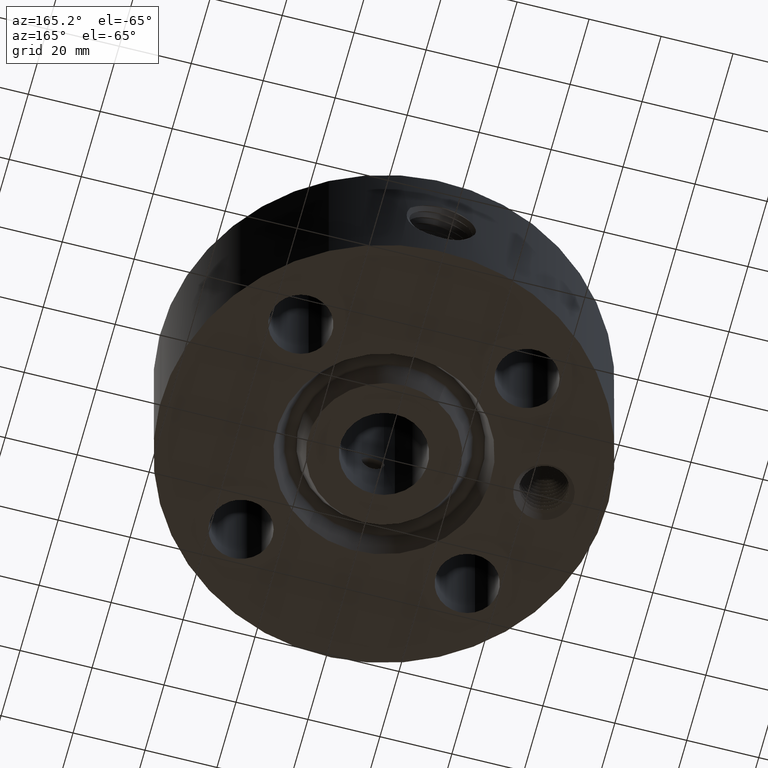
[diagram: clean part render]
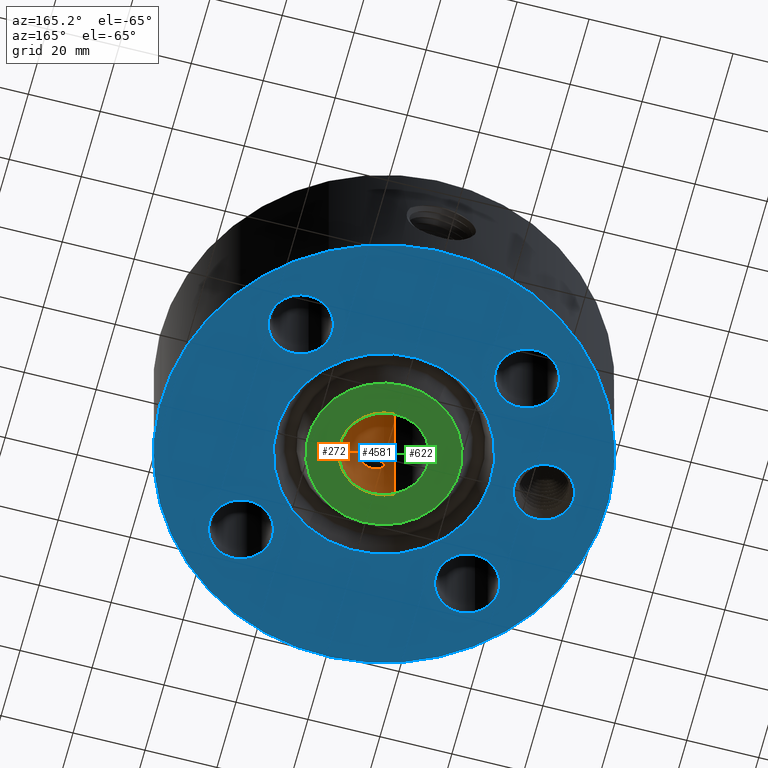
[diagram: same view with three faces highlighted in distinct colors, each labeled with its STEP entity id]
A machine part, auxiliary view with three faces highlighted in distinct colors.
Their STEP definitions:

[orange] entity #272 — the highlighted cylindrical surface (partial cylindrical patch) has radius 12.1539 mm, axis along (0, 0, -1).
#232=AXIS2_PLACEMENT_3D('Cylinder Axis2P3D',#229,#230,#231) ;
#236=AXIS2_PLACEMENT_3D('Circle Axis2P3D',#234,#235,$) ;
#252=AXIS2_PLACEMENT_3D('Circle Axis2P3D',#250,#251,$) ;
#81=CARTESIAN_POINT('Control Point',(0.109697820237,-0.465755985723,0.690071807677)) ;
#82=CARTESIAN_POINT('Control Point',(0.104177837694,-0.467056087217,0.679967547409)) ;
#83=CARTESIAN_POINT('Control Point',(0.0975045093995,-0.468541514343,0.670517208726)) ;
#84=CARTESIAN_POINT('Control Point',(0.0897779396084,-0.470117580397,0.661884757457)) ;
#85=CARTESIAN_POINT('Control Point',(0.0639316150191,-0.474752043858,0.638955992736)) ;
#86=CARTESIAN_POINT('Control Point',(0.0311966566331,-0.478288680471,0.625624428685)) ;
#87=CARTESIAN_POINT('Control Point',(0.00751279282738,-0.479346782865,0.621951182049)) ;
#88=CARTESIAN_POINT('Control Point',(-0.0421722663519,-0.478056220567,0.626109831989)) ;
#89=CARTESIAN_POINT('Control Point',(-0.084374280653,-0.471748533137,0.652491121246)) ;
#90=CARTESIAN_POINT('Control Point',(-0.102414152134,-0.467701006359,0.671637106699)) ;
#91=CARTESIAN_POINT('Control Point',(-0.124111818554,-0.462216652031,0.71151919539)) ;
#92=CARTESIAN_POINT('Control Point',(-0.126979040292,-0.461322537093,0.756474223505)) ;
#93=CARTESIAN_POINT('Control Point',(-0.124534012228,-0.462035996221,0.775540575989)) ;
#94=CARTESIAN_POINT('Control Point',(-0.118623789208,-0.463653684584,0.793589315722)) ;
#95=CARTESIAN_POINT('Control Point',(-0.109697820237,-0.465755985723,0.809928192329)) ;
#96=CARTESIAN_POINT('Vertex',(0.109697820237,-0.465755985723,0.690071807677)) ;
#98=CARTESIAN_POINT('Vertex',(-0.109697820237,-0.465755985723,0.809928192329)) ;
#206=CARTESIAN_POINT('Control Point',(-0.109697820237,-0.465755985723,0.809928192329)) ;
#207=CARTESIAN_POINT('Control Point',(-0.104177837694,-0.467056087217,0.820032452598)) ;
#208=CARTESIAN_POINT('Control Point',(-0.0975045093983,-0.468541514343,0.829482791281)) ;
#209=CARTESIAN_POINT('Control Point',(-0.0897779396119,-0.470117580396,0.838115242545)) ;
#210=CARTESIAN_POINT('Control Point',(-0.063931615023,-0.474752043857,0.861044007268)) ;
#211=CARTESIAN_POINT('Control Point',(-0.0311966566371,-0.478288680471,0.87437557132)) ;
#212=CARTESIAN_POINT('Control Point',(-0.00751279282908,-0.479346782865,0.878048817956)) ;
#213=CARTESIAN_POINT('Control Point',(0.0421722663505,-0.478056220567,0.873890168017)) ;
#214=CARTESIAN_POINT('Control Point',(0.0843742806522,-0.471748533137,0.847508878761)) ;
#215=CARTESIAN_POINT('Control Point',(0.102414152131,-0.467701006359,0.828362893311)) ;
#216=CARTESIAN_POINT('Control Point',(0.124111818553,-0.462216652031,0.788480804618)) ;
#217=CARTESIAN_POINT('Control Point',(0.126979040292,-0.461322537093,0.743525776501)) ;
#218=CARTESIAN_POINT('Control Point',(0.124534012229,-0.462035996221,0.724459424019)) ;
#219=CARTESIAN_POINT('Control Point',(0.118623789209,-0.463653684583,0.706410684285)) ;
#220=CARTESIAN_POINT('Control Point',(0.109697820237,-0.465755985723,0.690071807677)) ;
#229=CARTESIAN_POINT('Axis2P3D Location',(0.,0.,1.75000000001)) ;
#234=CARTESIAN_POINT('Axis2P3D Location',(0.,0.,3.50000000001)) ;
#238=CARTESIAN_POINT('Vertex',(0.229405120223,0.419923255866,3.50000000001)) ;
#240=CARTESIAN_POINT('Vertex',(-0.229405120223,-0.419923255866,3.50000000001)) ;
#243=CARTESIAN_POINT('Line Origine',(0.229405120223,0.419923255866,1.75000000001)) ;
#247=CARTESIAN_POINT('Vertex',(0.229405120223,0.419923255866,0.)) ;
#250=CARTESIAN_POINT('Axis2P3D Location',(0.,0.,-5.59482469102E-016)) ;
#254=CARTESIAN_POINT('Vertex',(-0.229405120223,-0.419923255866,0.)) ;
#257=CARTESIAN_POINT('Line Origine',(-0.229405120223,-0.419923255866,1.75000000001)) ;
#230=DIRECTION('Axis2P3D Direction',(0.,0.,-0.0393700787402)) ;
#231=DIRECTION('Axis2P3D XDirection',(-0.0188750212049,-0.0345504945626,0.)) ;
#235=DIRECTION('Axis2P3D Direction',(0.,0.,-0.0393700787402)) ;
#244=DIRECTION('Vector Direction',(0.,0.,-0.0393700787402)) ;
#251=DIRECTION('Axis2P3D Direction',(0.,0.,-0.0393700787402)) ;
#258=DIRECTION('Vector Direction',(0.,0.,-0.0393700787402)) ;
#245=VECTOR('Line Direction',#244,0.0393700787402) ;
#259=VECTOR('Line Direction',#258,0.0393700787402) ;
#263=ORIENTED_EDGE('',*,*,#242,.F.) ;
#264=ORIENTED_EDGE('',*,*,#249,.T.) ;
#265=ORIENTED_EDGE('',*,*,#256,.T.) ;
#266=ORIENTED_EDGE('',*,*,#261,.F.) ;
#269=ORIENTED_EDGE('',*,*,#100,.F.) ;
#270=ORIENTED_EDGE('',*,*,#221,.F.) ;
#271=FACE_BOUND('',#268,.T.) ;
#272=ADVANCED_FACE('PartBody',(#267,#271),#233,.F.) ;
#80=B_SPLINE_CURVE_WITH_KNOTS('',5,(#81,#82,#83,#84,#85,#86,#87,#88,#89,#90,#91,#92,#93,#94,#95),.UNSPECIFIED.,.F.,.U.,(6,3,3,3,6),(0.,2.08106888024,6.22036448454,10.8026371746,14.1677848195),.UNSPECIFIED.) ;
#205=B_SPLINE_CURVE_WITH_KNOTS('',5,(#206,#207,#208,#209,#210,#211,#212,#213,#214,#215,#216,#217,#218,#219,#220),.UNSPECIFIED.,.F.,.U.,(6,3,3,3,6),(0.,2.08106888042,6.22036448462,10.8026371749,14.1677848199),.UNSPECIFIED.) ;
#237=CIRCLE('generated circle',#236,0.478500000002) ;
#253=CIRCLE('generated circle',#252,0.478500000002) ;
#233=CYLINDRICAL_SURFACE('generated cylinder',#232,0.478500000002) ;
#100=EDGE_CURVE('',#97,#99,#80,.T.) ;
#221=EDGE_CURVE('',#99,#97,#205,.T.) ;
#242=EDGE_CURVE('',#239,#241,#237,.T.) ;
#249=EDGE_CURVE('',#239,#248,#246,.T.) ;
#256=EDGE_CURVE('',#248,#255,#253,.T.) ;
#261=EDGE_CURVE('',#241,#255,#260,.T.) ;
#262=EDGE_LOOP('',(#263,#264,#265,#266)) ;
#268=EDGE_LOOP('',(#269,#270)) ;
#267=FACE_OUTER_BOUND('',#262,.T.) ;
#246=LINE('Line',#243,#245) ;
#260=LINE('Line',#257,#259) ;
#97=VERTEX_POINT('',#96) ;
#99=VERTEX_POINT('',#98) ;
#239=VERTEX_POINT('',#238) ;
#241=VERTEX_POINT('',#240) ;
#248=VERTEX_POINT('',#247) ;
#255=VERTEX_POINT('',#254) ;

[blue] entity #4581 — the highlighted planar face has unit normal (0, 0, -1).
#598=AXIS2_PLACEMENT_3D('Plane Axis2P3D',#595,#596,#597) ;
#3368=AXIS2_PLACEMENT_3D('Circle Axis2P3D',#3366,#3367,$) ;
#3394=AXIS2_PLACEMENT_3D('Circle Axis2P3D',#3392,#3393,$) ;
#3667=AXIS2_PLACEMENT_3D('Circle Axis2P3D',#3665,#3666,$) ;
#3811=AXIS2_PLACEMENT_3D('Circle Axis2P3D',#3809,#3810,$) ;
#4086=AXIS2_PLACEMENT_3D('Circle Axis2P3D',#4084,#4085,$) ;
#4105=AXIS2_PLACEMENT_3D('Circle Axis2P3D',#4103,#4104,$) ;
#4129=AXIS2_PLACEMENT_3D('Circle Axis2P3D',#4127,#4128,$) ;
#4148=AXIS2_PLACEMENT_3D('Circle Axis2P3D',#4146,#4147,$) ;
#4172=AXIS2_PLACEMENT_3D('Circle Axis2P3D',#4170,#4171,$) ;
#4191=AXIS2_PLACEMENT_3D('Circle Axis2P3D',#4189,#4190,$) ;
#4215=AXIS2_PLACEMENT_3D('Circle Axis2P3D',#4213,#4214,$) ;
#4234=AXIS2_PLACEMENT_3D('Circle Axis2P3D',#4232,#4233,$) ;
#4545=AXIS2_PLACEMENT_3D('Circle Axis2P3D',#4543,#4544,$) ;
#4554=AXIS2_PLACEMENT_3D('Circle Axis2P3D',#4552,#4553,$) ;
#595=CARTESIAN_POINT('Axis2P3D Location',(0.,0.478500000002,0.)) ;
#3366=CARTESIAN_POINT('Axis2P3D Location',(0.,0.,0.)) ;
#3370=CARTESIAN_POINT('Vertex',(-0.561886731246,1.02852676254,0.)) ;
#3372=CARTESIAN_POINT('Vertex',(0.561886731246,-1.02852676254,3.49676543189E-017)) ;
#3392=CARTESIAN_POINT('Axis2P3D Location',(0.,0.,0.)) ;
#3665=CARTESIAN_POINT('Axis2P3D Location',(0.,0.,2.79741234551E-016)) ;
#3669=CARTESIAN_POINT('Vertex',(-1.1697983142,-2.14130145102,2.79741234551E-016)) ;
#3671=CARTESIAN_POINT('Vertex',(1.1697983142,2.14130145102,2.79741234551E-016)) ;
#3809=CARTESIAN_POINT('Axis2P3D Location',(0.,0.,2.79741234551E-016)) ;
#4081=CARTESIAN_POINT('Vertex',(1.54020285093,-1.4028386779,0.)) ;
#4084=CARTESIAN_POINT('Axis2P3D Location',(1.23743686708,-1.23743686708,0.)) ;
#4088=CARTESIAN_POINT('Vertex',(0.934670883228,-1.07203505626,0.)) ;
#4103=CARTESIAN_POINT('Axis2P3D Location',(1.23743686708,-1.23743686708,0.)) ;
#4124=CARTESIAN_POINT('Vertex',(-1.07203505626,-0.934670883228,0.)) ;
#4127=CARTESIAN_POINT('Axis2P3D Location',(-1.23743686708,-1.23743686708,0.)) ;
#4131=CARTESIAN_POINT('Vertex',(-1.4028386779,-1.54020285093,0.)) ;
#4146=CARTESIAN_POINT('Axis2P3D Location',(-1.23743686708,-1.23743686708,0.)) ;
#4167=CARTESIAN_POINT('Vertex',(-0.934670883228,1.07203505626,0.)) ;
#4170=CARTESIAN_POINT('Axis2P3D Location',(-1.23743686708,1.23743686708,0.)) ;
#4174=CARTESIAN_POINT('Vertex',(-1.54020285093,1.4028386779,0.)) ;
#4189=CARTESIAN_POINT('Axis2P3D Location',(-1.23743686708,1.23743686708,0.)) ;
#4210=CARTESIAN_POINT('Vertex',(1.07203505626,0.934670883228,0.)) ;
#4213=CARTESIAN_POINT('Axis2P3D Location',(1.23743686708,1.23743686708,0.)) ;
#4217=CARTESIAN_POINT('Vertex',(1.4028386779,1.54020285093,0.)) ;
#4232=CARTESIAN_POINT('Axis2P3D Location',(1.23743686708,1.23743686708,0.)) ;
#4543=CARTESIAN_POINT('Axis2P3D Location',(-1.75000000001,0.,0.)) ;
#4547=CARTESIAN_POINT('Vertex',(-1.46423717829,-0.156112941009,0.)) ;
#4549=CARTESIAN_POINT('Vertex',(-2.03576282172,0.156112941009,0.)) ;
#4552=CARTESIAN_POINT('Axis2P3D Location',(-1.75000000001,0.,0.)) ;
#596=DIRECTION('Axis2P3D Direction',(0.,0.,-0.0393700787402)) ;
#597=DIRECTION('Axis2P3D XDirection',(0.0393700787402,0.,0.)) ;
#3367=DIRECTION('Axis2P3D Direction',(0.,0.,-0.0393700787402)) ;
#3393=DIRECTION('Axis2P3D Direction',(0.,0.,-0.0393700787402)) ;
#3666=DIRECTION('Axis2P3D Direction',(0.,0.,-0.0393700787402)) ;
#3810=DIRECTION('Axis2P3D Direction',(0.,0.,-0.0393700787402)) ;
#4085=DIRECTION('Axis2P3D Direction',(0.,-0.,-0.0393700787402)) ;
#4104=DIRECTION('Axis2P3D Direction',(0.,-0.,-0.0393700787402)) ;
#4128=DIRECTION('Axis2P3D Direction',(0.,-0.,-0.0393700787402)) ;
#4147=DIRECTION('Axis2P3D Direction',(0.,-0.,-0.0393700787402)) ;
#4171=DIRECTION('Axis2P3D Direction',(-0.,0.,-0.0393700787402)) ;
#4190=DIRECTION('Axis2P3D Direction',(-0.,0.,-0.0393700787402)) ;
#4214=DIRECTION('Axis2P3D Direction',(0.,0.,-0.0393700787402)) ;
#4233=DIRECTION('Axis2P3D Direction',(0.,0.,-0.0393700787402)) ;
#4544=DIRECTION('Axis2P3D Direction',(0.,0.,-0.0393700787402)) ;
#4553=DIRECTION('Axis2P3D Direction',(0.,0.,-0.0393700787402)) ;
#4540=ORIENTED_EDGE('',*,*,#3673,.T.) ;
#4541=ORIENTED_EDGE('',*,*,#3813,.T.) ;
#4558=ORIENTED_EDGE('',*,*,#4551,.F.) ;
#4559=ORIENTED_EDGE('',*,*,#4556,.F.) ;
#4562=ORIENTED_EDGE('',*,*,#4090,.F.) ;
#4563=ORIENTED_EDGE('',*,*,#4107,.F.) ;
#4566=ORIENTED_EDGE('',*,*,#4133,.F.) ;
#4567=ORIENTED_EDGE('',*,*,#4150,.F.) ;
#4570=ORIENTED_EDGE('',*,*,#4176,.F.) ;
#4571=ORIENTED_EDGE('',*,*,#4193,.F.) ;
#4574=ORIENTED_EDGE('',*,*,#4219,.F.) ;
#4575=ORIENTED_EDGE('',*,*,#4236,.F.) ;
#4578=ORIENTED_EDGE('',*,*,#3396,.F.) ;
#4579=ORIENTED_EDGE('',*,*,#3374,.F.) ;
#4560=FACE_BOUND('',#4557,.T.) ;
#4564=FACE_BOUND('',#4561,.T.) ;
#4568=FACE_BOUND('',#4565,.T.) ;
#4572=FACE_BOUND('',#4569,.T.) ;
#4576=FACE_BOUND('',#4573,.T.) ;
#4580=FACE_BOUND('',#4577,.T.) ;
#4581=ADVANCED_FACE('PartBody',(#4542,#4560,#4564,#4568,#4572,#4576,#4580),#599,.T.) ;
#3369=CIRCLE('generated circle',#3368,1.172) ;
#3395=CIRCLE('generated circle',#3394,1.172) ;
#3668=CIRCLE('generated circle',#3667,2.44000000001) ;
#3812=CIRCLE('generated circle',#3811,2.44000000001) ;
#4087=CIRCLE('generated circle',#4086,0.345000000001) ;
#4106=CIRCLE('generated circle',#4105,0.345000000001) ;
#4130=CIRCLE('generated circle',#4129,0.345000000001) ;
#4149=CIRCLE('generated circle',#4148,0.345000000001) ;
#4173=CIRCLE('generated circle',#4172,0.345000000001) ;
#4192=CIRCLE('generated circle',#4191,0.345000000001) ;
#4216=CIRCLE('generated circle',#4215,0.345000000001) ;
#4235=CIRCLE('generated circle',#4234,0.345000000001) ;
#4546=CIRCLE('generated circle',#4545,0.325625000001) ;
#4555=CIRCLE('generated circle',#4554,0.325625000001) ;
#3374=EDGE_CURVE('',#3371,#3373,#3369,.T.) ;
#3396=EDGE_CURVE('',#3373,#3371,#3395,.T.) ;
#3673=EDGE_CURVE('',#3670,#3672,#3668,.T.) ;
#3813=EDGE_CURVE('',#3672,#3670,#3812,.T.) ;
#4090=EDGE_CURVE('',#4082,#4089,#4087,.T.) ;
#4107=EDGE_CURVE('',#4089,#4082,#4106,.T.) ;
#4133=EDGE_CURVE('',#4125,#4132,#4130,.T.) ;
#4150=EDGE_CURVE('',#4132,#4125,#4149,.T.) ;
#4176=EDGE_CURVE('',#4168,#4175,#4173,.T.) ;
#4193=EDGE_CURVE('',#4175,#4168,#4192,.T.) ;
#4219=EDGE_CURVE('',#4211,#4218,#4216,.T.) ;
#4236=EDGE_CURVE('',#4218,#4211,#4235,.T.) ;
#4551=EDGE_CURVE('',#4548,#4550,#4546,.T.) ;
#4556=EDGE_CURVE('',#4550,#4548,#4555,.T.) ;
#4539=EDGE_LOOP('',(#4540,#4541)) ;
#4557=EDGE_LOOP('',(#4558,#4559)) ;
#4561=EDGE_LOOP('',(#4562,#4563)) ;
#4565=EDGE_LOOP('',(#4566,#4567)) ;
#4569=EDGE_LOOP('',(#4570,#4571)) ;
#4573=EDGE_LOOP('',(#4574,#4575)) ;
#4577=EDGE_LOOP('',(#4578,#4579)) ;
#4542=FACE_OUTER_BOUND('',#4539,.T.) ;
#599=PLANE('',#598) ;
#3371=VERTEX_POINT('',#3370) ;
#3373=VERTEX_POINT('',#3372) ;
#3670=VERTEX_POINT('',#3669) ;
#3672=VERTEX_POINT('',#3671) ;
#4082=VERTEX_POINT('',#4081) ;
#4089=VERTEX_POINT('',#4088) ;
#4125=VERTEX_POINT('',#4124) ;
#4132=VERTEX_POINT('',#4131) ;
#4168=VERTEX_POINT('',#4167) ;
#4175=VERTEX_POINT('',#4174) ;
#4211=VERTEX_POINT('',#4210) ;
#4218=VERTEX_POINT('',#4217) ;
#4548=VERTEX_POINT('',#4547) ;
#4550=VERTEX_POINT('',#4549) ;

[green] entity #622 — the highlighted planar face has unit normal (0, 0, -1).
#252=AXIS2_PLACEMENT_3D('Circle Axis2P3D',#250,#251,$) ;
#543=AXIS2_PLACEMENT_3D('Circle Axis2P3D',#541,#542,$) ;
#598=AXIS2_PLACEMENT_3D('Plane Axis2P3D',#595,#596,#597) ;
#602=AXIS2_PLACEMENT_3D('Circle Axis2P3D',#600,#601,$) ;
#611=AXIS2_PLACEMENT_3D('Circle Axis2P3D',#609,#610,$) ;
#247=CARTESIAN_POINT('Vertex',(0.229405120223,0.419923255866,0.)) ;
#250=CARTESIAN_POINT('Axis2P3D Location',(0.,0.,-5.59482469102E-016)) ;
#254=CARTESIAN_POINT('Vertex',(-0.229405120223,-0.419923255866,0.)) ;
#541=CARTESIAN_POINT('Axis2P3D Location',(0.,0.,-5.59482469102E-016)) ;
#595=CARTESIAN_POINT('Axis2P3D Location',(0.,0.478500000002,0.)) ;
#600=CARTESIAN_POINT('Axis2P3D Location',(0.,0.,0.)) ;
#604=CARTESIAN_POINT('Vertex',(-0.396964345966,0.726638361248,0.)) ;
#606=CARTESIAN_POINT('Vertex',(0.396964345966,-0.726638361248,0.)) ;
#609=CARTESIAN_POINT('Axis2P3D Location',(1.39870617276E-016,0.,0.)) ;
#251=DIRECTION('Axis2P3D Direction',(0.,0.,-0.0393700787402)) ;
#542=DIRECTION('Axis2P3D Direction',(0.,0.,-0.0393700787402)) ;
#596=DIRECTION('Axis2P3D Direction',(0.,0.,-0.0393700787402)) ;
#597=DIRECTION('Axis2P3D XDirection',(0.0393700787402,0.,0.)) ;
#601=DIRECTION('Axis2P3D Direction',(0.,0.,-0.0393700787402)) ;
#610=DIRECTION('Axis2P3D Direction',(0.,0.,-0.0393700787402)) ;
#615=ORIENTED_EDGE('',*,*,#608,.T.) ;
#616=ORIENTED_EDGE('',*,*,#613,.T.) ;
#619=ORIENTED_EDGE('',*,*,#256,.F.) ;
#620=ORIENTED_EDGE('',*,*,#545,.F.) ;
#621=FACE_BOUND('',#618,.T.) ;
#622=ADVANCED_FACE('PartBody',(#617,#621),#599,.T.) ;
#253=CIRCLE('generated circle',#252,0.478500000002) ;
#544=CIRCLE('generated circle',#543,0.478500000002) ;
#603=CIRCLE('generated circle',#602,0.828000000003) ;
#612=CIRCLE('generated circle',#611,0.828000000003) ;
#256=EDGE_CURVE('',#248,#255,#253,.T.) ;
#545=EDGE_CURVE('',#255,#248,#544,.T.) ;
#608=EDGE_CURVE('',#605,#607,#603,.T.) ;
#613=EDGE_CURVE('',#607,#605,#612,.T.) ;
#614=EDGE_LOOP('',(#615,#616)) ;
#618=EDGE_LOOP('',(#619,#620)) ;
#617=FACE_OUTER_BOUND('',#614,.T.) ;
#599=PLANE('',#598) ;
#248=VERTEX_POINT('',#247) ;
#255=VERTEX_POINT('',#254) ;
#605=VERTEX_POINT('',#604) ;
#607=VERTEX_POINT('',#606) ;